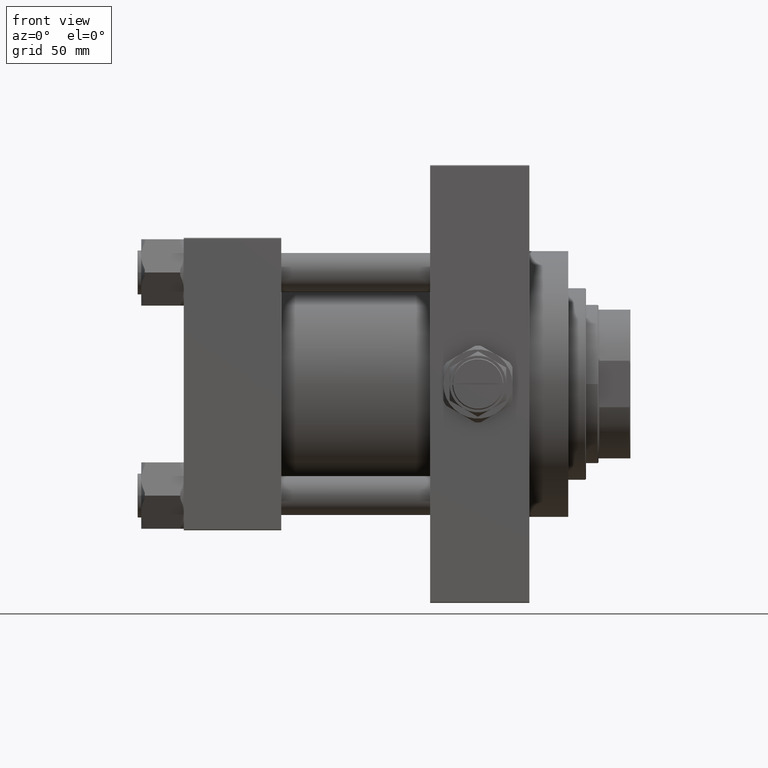
[diagram: clean part render]
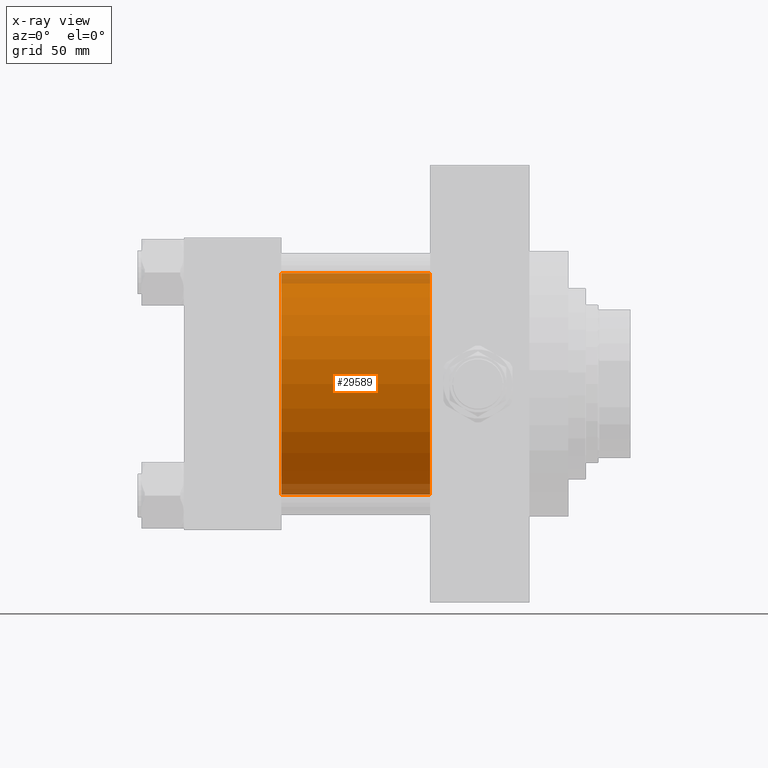
[diagram: x-ray — body ghosted, one internal face saturated and labeled with its STEP entity id]
A machine part, front view, then the same camera in x-ray: the body is ghosted and one INTERNAL B-rep face — a face not visible from any outside direction — is saturated and labeled: STEP entity #29589.
In plain terms, the highlighted cylindrical surface (partial cylindrical patch) has radius 62.5 mm, axis along (-1, -0, -0).
Its self-contained STEP definition (entity closure, byte-faithful):
#125 = AXIS2_PLACEMENT_3D ( 'NONE', #14769, #49029, #13773 ) ;
#1681 = VERTEX_POINT ( 'NONE', #49657 ) ;
#2015 = CARTESIAN_POINT ( 'NONE',  ( 139.0000000000000000, 5.051957280705745584E-15, -62.50000000000000000 ) ) ;
#2731 = VECTOR ( 'NONE', #37543, 1000.000000000000000 ) ;
#2992 = EDGE_CURVE ( 'NONE', #7731, #1681, #10600, .T. ) ;
#3624 = ORIENTED_EDGE ( 'NONE', *, *, #33416, .T. ) ;
#7062 = CARTESIAN_POINT ( 'NONE',  ( 139.0000000000000000, 5.051957280705745584E-15, -62.50000000000000000 ) ) ;
#7731 = VERTEX_POINT ( 'NONE', #2015 ) ;
#10600 = LINE ( 'NONE', #7062, #2731 ) ;
#11568 = CARTESIAN_POINT ( 'NONE',  ( 139.0000000000000000, -2.602085213965210642E-15, 0.000000000000000000 ) ) ;
#12795 = CARTESIAN_POINT ( 'NONE',  ( 139.0000000000000000, -2.602085213965210642E-15, 62.50000000000000000 ) ) ;
#13773 = DIRECTION ( 'NONE',  ( 0.000000000000000000, 0.000000000000000000, -1.000000000000000000 ) ) ;
#14390 = ORIENTED_EDGE ( 'NONE', *, *, #28865, .F. ) ;
#14769 = CARTESIAN_POINT ( 'NONE',  ( 139.0000000000000000, -2.602085213965210642E-15, 0.000000000000000000 ) ) ;
#15019 = ORIENTED_EDGE ( 'NONE', *, *, #2992, .T. ) ;
#15298 = AXIS2_PLACEMENT_3D ( 'NONE', #11568, #35472, #42541 ) ;
#17537 = DIRECTION ( 'NONE',  ( 0.000000000000000000, 0.000000000000000000, -1.000000000000000000 ) ) ;
#19868 = CARTESIAN_POINT ( 'NONE',  ( 139.0000000000000000, -2.602085213965210642E-15, 62.50000000000000000 ) ) ;
#20108 = FACE_OUTER_BOUND ( 'NONE', #41988, .T. ) ;
#20918 = VERTEX_POINT ( 'NONE', #19868 ) ;
#21846 = CIRCLE ( 'NONE', #125, 62.50000000000000000 ) ;
#23886 = CYLINDRICAL_SURFACE ( 'NONE', #15298, 62.50000000000000000 ) ;
#28172 = DIRECTION ( 'NONE',  ( -1.000000000000000000, -0.000000000000000000, -0.000000000000000000 ) ) ;
#28865 = EDGE_CURVE ( 'NONE', #20918, #48725, #31944, .T. ) ;
#29589 = ADVANCED_FACE ( 'NONE', ( #20108 ), #23886, .F. ) ;
#29885 = CIRCLE ( 'NONE', #41956, 62.50000000000000000 ) ;
#31944 = LINE ( 'NONE', #12795, #38575 ) ;
#32566 = EDGE_CURVE ( 'NONE', #48725, #1681, #29885, .T. ) ;
#32666 = CARTESIAN_POINT ( 'NONE',  ( 55.00000000000000000, -2.602085213965210642E-15, 0.000000000000000000 ) ) ;
#33416 = EDGE_CURVE ( 'NONE', #20918, #7731, #21846, .T. ) ;
#35472 = DIRECTION ( 'NONE',  ( -1.000000000000000000, -0.000000000000000000, -0.000000000000000000 ) ) ;
#37543 = DIRECTION ( 'NONE',  ( -1.000000000000000000, -0.000000000000000000, -0.000000000000000000 ) ) ;
#38575 = VECTOR ( 'NONE', #28172, 1000.000000000000000 ) ;
#38602 = ORIENTED_EDGE ( 'NONE', *, *, #32566, .F. ) ;
#41956 = AXIS2_PLACEMENT_3D ( 'NONE', #32666, #44500, #17537 ) ;
#41988 = EDGE_LOOP ( 'NONE', ( #3624, #15019, #38602, #14390 ) ) ;
#42276 = CARTESIAN_POINT ( 'NONE',  ( 55.00000000000000000, -2.602085213965210642E-15, 62.50000000000000000 ) ) ;
#42541 = DIRECTION ( 'NONE',  ( 0.000000000000000000, 0.000000000000000000, 1.000000000000000000 ) ) ;
#44500 = DIRECTION ( 'NONE',  ( 1.000000000000000000, 0.000000000000000000, 0.000000000000000000 ) ) ;
#48725 = VERTEX_POINT ( 'NONE', #42276 ) ;
#49029 = DIRECTION ( 'NONE',  ( 1.000000000000000000, 0.000000000000000000, 0.000000000000000000 ) ) ;
#49657 = CARTESIAN_POINT ( 'NONE',  ( 55.00000000000000000, 5.051957280705745584E-15, -62.50000000000000000 ) ) ;